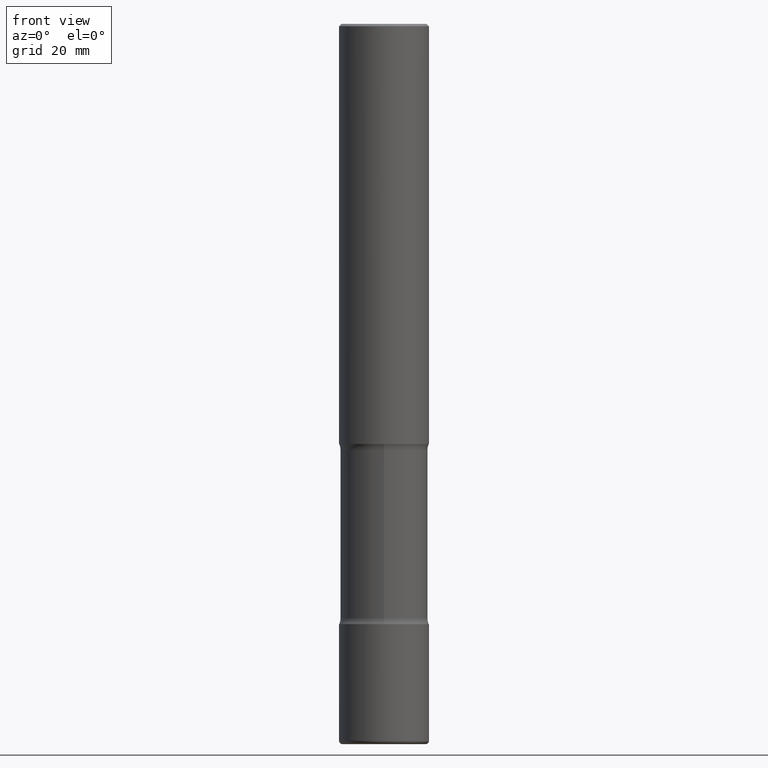
[diagram: clean part render]
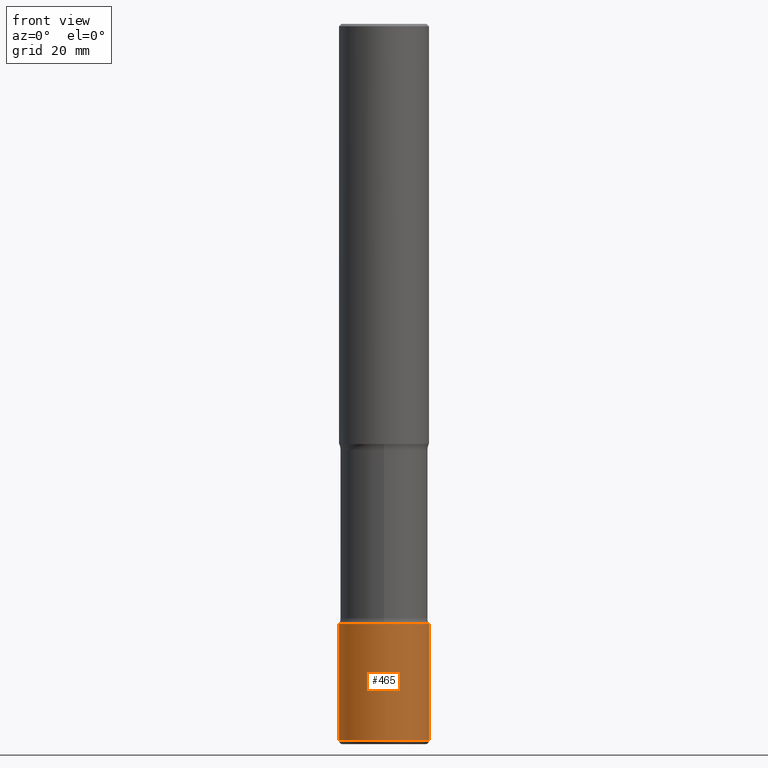
[diagram: same view with one face highlighted and labeled with its STEP entity id]
A machine part, front view. The second image highlights one B-rep face of the part: STEP entity #465.
In plain terms, the highlighted cylindrical surface (partial cylindrical patch) has radius 9.525 mm, axis along (-0, 0, 1).
Its self-contained STEP definition (entity closure, byte-faithful):
#9 = EDGE_CURVE ( 'NONE', #195, #76, #226, .T. ) ;
#33 = AXIS2_PLACEMENT_3D ( 'NONE', #284, #103, #436 ) ;
#39 = CIRCLE ( 'NONE', #433, 0.3750000000000001665 ) ;
#62 = CYLINDRICAL_SURFACE ( 'NONE', #337, 0.3750000000000002220 ) ;
#76 = VERTEX_POINT ( 'NONE', #269 ) ;
#84 = CARTESIAN_POINT ( 'NONE',  ( -0.3750000000000002220, 2.664535259100377275E-15, -1.844600658845590719E-29 ) ) ;
#103 = DIRECTION ( 'NONE',  ( -2.445468806185136597E-29, 3.491481338843145583E-15, 1.000000000000000000 ) ) ;
#106 = CARTESIAN_POINT ( 'NONE',  ( 0.3750000000000002220, -2.007601769834807990E-14, -5.000000000000000000 ) ) ;
#121 = CIRCLE ( 'NONE', #33, 0.3750000000000002220 ) ;
#142 = VECTOR ( 'NONE', #159, 39.37007874015748143 ) ;
#144 = ORIENTED_EDGE ( 'NONE', *, *, #346, .T. ) ;
#159 = DIRECTION ( 'NONE',  ( -2.445468806185136877E-29, 3.491481338843145188E-15, 1.000000000000000000 ) ) ;
#166 = CARTESIAN_POINT ( 'NONE',  ( 0.3750000000000002776, -2.346275459702592935E-14, -5.969999999999999751 ) ) ;
#171 = EDGE_CURVE ( 'NONE', #195, #395, #39, .T. ) ;
#195 = VERTEX_POINT ( 'NONE', #239 ) ;
#199 = DIRECTION ( 'NONE',  ( 1.000000000000000000, -6.982962677686266711E-15, 4.876176775795935793E-29 ) ) ;
#208 = ORIENTED_EDGE ( 'NONE', *, *, #9, .F. ) ;
#209 = EDGE_CURVE ( 'NONE', #76, #211, #121, .T. ) ;
#211 = VERTEX_POINT ( 'NONE', #106 ) ;
#226 = LINE ( 'NONE', #84, #421 ) ;
#239 = CARTESIAN_POINT ( 'NONE',  ( -0.3750000000000002776, -1.817960833379319733E-14, -5.969999999999999751 ) ) ;
#269 = CARTESIAN_POINT ( 'NONE',  ( -0.3750000000000002220, -1.648623988445427734E-14, -5.000000000000000000 ) ) ;
#274 = DIRECTION ( 'NONE',  ( 1.000000000000000000, -6.982962677686269866E-15, 0.000000000000000000 ) ) ;
#284 = CARTESIAN_POINT ( 'NONE',  ( 1.222734403092568523E-28, -1.745740669421572989E-14, -5.000000000000000000 ) ) ;
#288 = FACE_OUTER_BOUND ( 'NONE', #374, .T. ) ;
#337 = AXIS2_PLACEMENT_3D ( 'NONE', #441, #367, #199 ) ;
#346 = EDGE_CURVE ( 'NONE', #395, #211, #544, .T. ) ;
#367 = DIRECTION ( 'NONE',  ( -2.445468806185136597E-29, 3.491481338843145583E-15, 1.000000000000000000 ) ) ;
#374 = EDGE_LOOP ( 'NONE', ( #208, #548, #144, #382 ) ) ;
#382 = ORIENTED_EDGE ( 'NONE', *, *, #209, .F. ) ;
#395 = VERTEX_POINT ( 'NONE', #166 ) ;
#419 = CARTESIAN_POINT ( 'NONE',  ( 0.3750000000000002220, -2.618611004132351594E-15, 1.828566290923477043E-29 ) ) ;
#421 = VECTOR ( 'NONE', #474, 39.37007874015748143 ) ;
#433 = AXIS2_PLACEMENT_3D ( 'NONE', #487, #481, #274 ) ;
#436 = DIRECTION ( 'NONE',  ( 1.000000000000000000, -6.982962677686263555E-15, 0.000000000000000000 ) ) ;
#441 = CARTESIAN_POINT ( 'NONE',  ( 0.000000000000000000, 0.000000000000000000, 0.000000000000000000 ) ) ;
#465 = ADVANCED_FACE ( 'NONE', ( #288 ), #62, .T. ) ;
#474 = DIRECTION ( 'NONE',  ( -2.445468806185136877E-29, 3.491481338843145188E-15, 1.000000000000000000 ) ) ;
#481 = DIRECTION ( 'NONE',  ( -2.445468806185136597E-29, 3.491481338843145583E-15, 1.000000000000000000 ) ) ;
#487 = CARTESIAN_POINT ( 'NONE',  ( 1.459944877292526494E-28, -2.084414359289357934E-14, -5.969999999999999751 ) ) ;
#544 = LINE ( 'NONE', #419, #142 ) ;
#548 = ORIENTED_EDGE ( 'NONE', *, *, #171, .T. ) ;